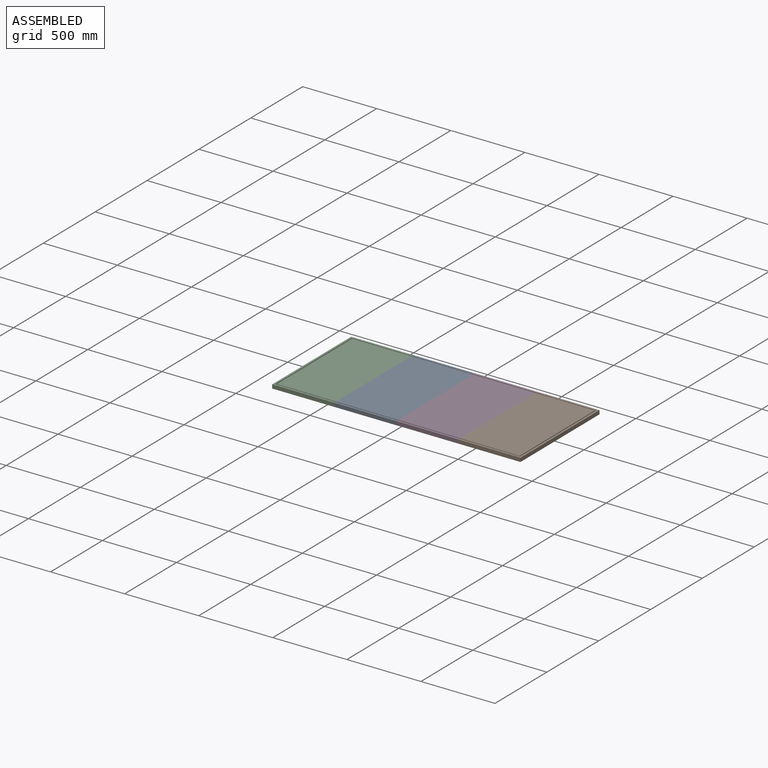
[diagram: assembled view]
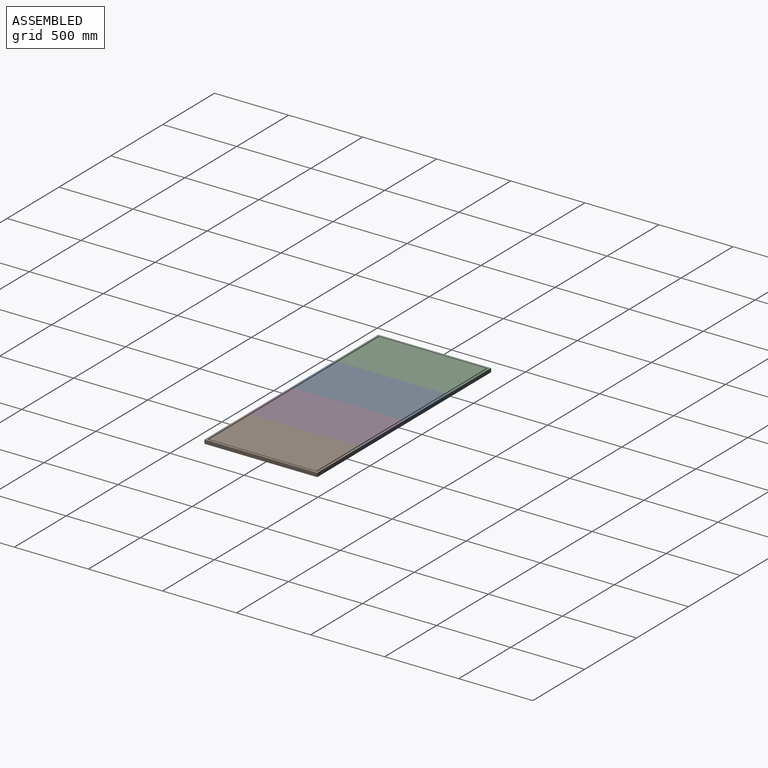
[diagram: assembled view, second angle]
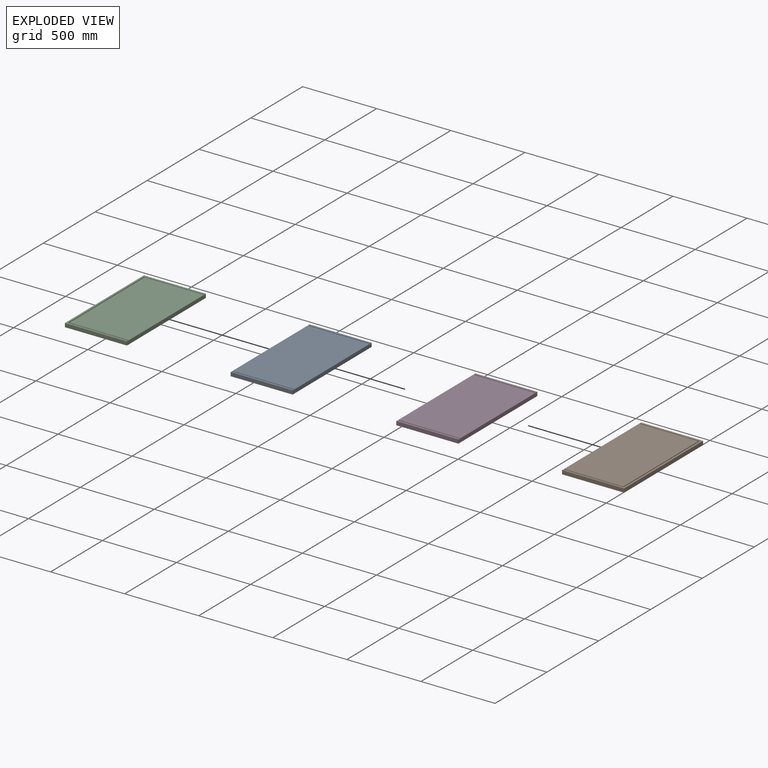
[diagram: exploded view]
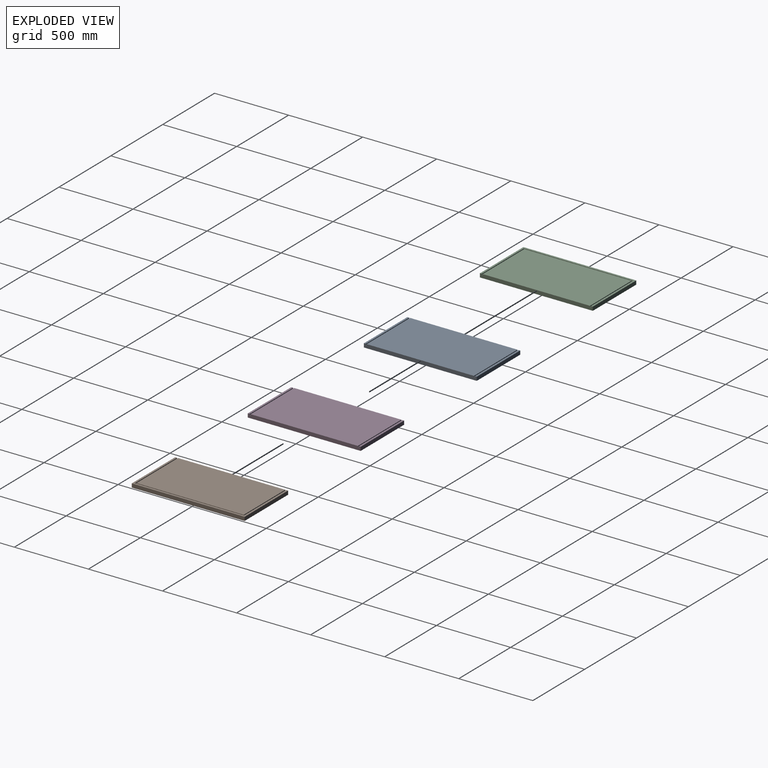
[diagram: exploded view, second angle]
ASSEMBLY  parts=4 mates=3
PART A: 14 faces, bbox 419.1x762x25.4 mm
  f0: plane 419.1x12.7mm, normal (0,0,1), area 5322.6mm2, adj f2,f3,f4,f11
  f1: plane 723.9x419.1mm, normal (0,0,1), area 303386.5mm2, adj f2,f4,f9,f12
  f2: plane 762x25.4mm, normal (1,0,0), area 19274.2mm2, adj f0,f1,f3,f5,f6,f7,f8,f9
  f3: plane 419.1x25.4mm, normal (0,1,0), area 10645.1mm2, adj f0,f2,f4,f7
  f4: plane 762x25.4mm, normal (-1,0,0), area 19274.2mm2, adj f0,f1,f3,f5,f6,f7,f8,f9
  f5: plane 419.1x25.4mm, normal (0,-1,0), area 10645.1mm2, adj f2,f4,f6,f7
  f6: plane 419.1x12.7mm, normal (0,0,1), area 5322.6mm2, adj f2,f4,f5,f8
  f7: plane 762x419.1mm, normal (0,0,-1), area 319354.2mm2, adj f2,f3,f4,f5
  f8: plane 419.1x6.35mm, normal (0,1,0), area 2661.3mm2, adj f2,f4,f6,f10
  f9: plane 419.1x6.35mm, normal (0,-1,0), area 2661.3mm2, adj f1,f2,f4,f10
  f10: plane 419.1x6.35mm, normal (0,0,1), area 2661.3mm2, adj f2,f4,f8,f9
  f11: plane 419.1x6.35mm, normal (0,-1,0), area 2661.3mm2, adj f0,f2,f4,f13
  f12: plane 419.1x6.35mm, normal (0,1,0), area 2661.3mm2, adj f1,f2,f4,f13
  f13: plane 419.1x6.35mm, normal (0,0,1), area 2661.3mm2, adj f2,f4,f11,f12
PART B: 14 faces, bbox 419.1x762x25.4 mm
  f0: plane 762x25.4mm, normal (1,0,0), area 19274.2mm2, adj f1,f2,f4,f5,f6,f7,f9,f10
  f1: plane 762x419.1mm, normal (0,0,1), area 20000mm2, adj f0,f3,f4,f5,f7,f8,f9
  f2: plane 723.9x400.05mm, normal (0,0,1), area 289596.2mm2, adj f0,f10,f11,f12
  f3: plane 762x25.4mm, normal (-1,0,0), area 19354.8mm2, adj f1,f4,f5,f6
  f4: plane 419.1x25.4mm, normal (0,-1,0), area 10645.1mm2, adj f0,f1,f3,f6
  f5: plane 419.1x25.4mm, normal (0,1,0), area 10645.1mm2, adj f0,f1,f3,f6
  f6: plane 762x419.1mm, normal (0,0,-1), area 319354.2mm2, adj f0,f3,f4,f5
  f7: plane 406.4x6.35mm, normal (0,-1,0), area 2580.6mm2, adj f0,f1,f8,f13
  f8: plane 736.6x6.35mm, normal (1,0,0), area 4677.4mm2, adj f1,f7,f9,f13
  f9: plane 406.4x6.35mm, normal (0,1,0), area 2580.6mm2, adj f0,f1,f8,f13
  f10: plane 400.05x6.35mm, normal (0,-1,0), area 2540.3mm2, adj f0,f2,f11,f13
  f11: plane 723.9x6.35mm, normal (-1,0,0), area 4596.8mm2, adj f2,f10,f12,f13
  f12: plane 400.05x6.35mm, normal (0,1,0), area 2540.3mm2, adj f0,f2,f11,f13
  f13: plane 736.6x406.4mm, normal (0,0,1), area 9758mm2, adj f0,f7,f8,f9,f10,f11,f12
PART C: same geometry as B
PART D: same geometry as A
PLACE A rot(axis=(0,0,-1),180deg) t=(-209.55,0,-25.4)mm
PLACE B rot(axis=(0,0,1),180deg) t=(0,0,-25.4)mm
PLACE C t=(0,0,-25.4)mm
PLACE D rot(axis=(0,0,1),180deg) t=(209.55,0,-25.4)mm
MATE fastened B.f0 <-> D.f4  axis (-1,0,0) through (419.1,381,0)mm
MATE fastened D.f2 <-> A.f4  axis (-1,0,0) through (0,381,0)mm
MATE fastened A.f2 <-> C.f0  axis (-1,0,0) through (-419.1,381,0)mm
